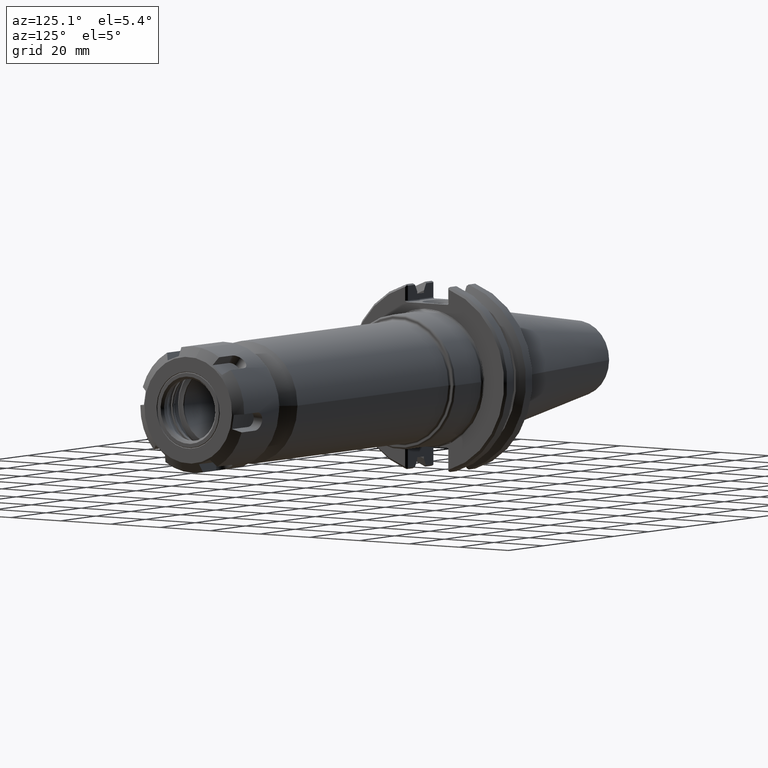
[diagram: clean part render]
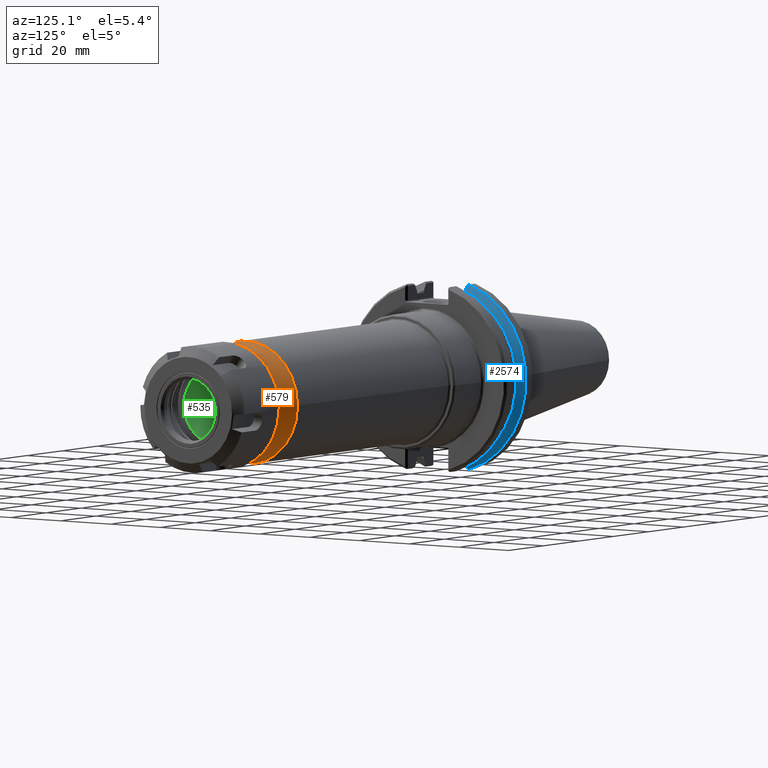
[diagram: same view with three faces highlighted in distinct colors, each labeled with its STEP entity id]
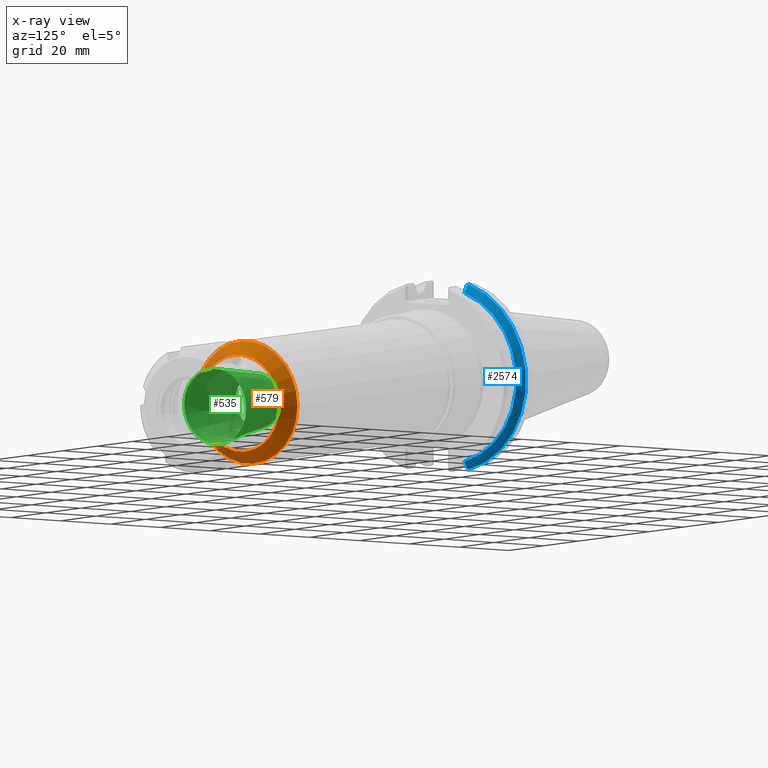
[diagram: x-ray of the same camera — body ghosted, the three highlighted faces saturated]
A machine part, auxiliary view with three faces highlighted in distinct colors.
The next image is the same camera in x-ray (body ghosted, the three faces saturated) — at least one of them is partly hidden behind the body in this view.
Their STEP definitions:

[orange] entity #579 — the highlighted conical surface has half-angle 45 deg.
#152=CARTESIAN_POINT('',(4.965000000000001,0.62992125984252,0.0));
#153=VERTEX_POINT('',#152);
#154=CARTESIAN_POINT('',(4.965000000000001,0.0,0.0));
#155=DIRECTION('',(1.0,0.0,0.0));
#156=DIRECTION('',(0.0,1.0,0.0));
#157=AXIS2_PLACEMENT_3D('',#154,#155,#156);
#158=CIRCLE('',#157,0.62992125984252);
#159=EDGE_CURVE('',#153,#153,#158,.T.);
#433=CARTESIAN_POINT('',(4.797421259842521,0.7975,0.0));
#434=VERTEX_POINT('',#433);
#435=CARTESIAN_POINT('',(4.797421259842521,0.0,0.0));
#436=DIRECTION('',(1.0,0.0,0.0));
#437=DIRECTION('',(0.0,1.0,0.0));
#438=AXIS2_PLACEMENT_3D('',#435,#436,#437);
#439=CIRCLE('',#438,0.7975);
#440=EDGE_CURVE('',#434,#434,#439,.T.);
#568=CARTESIAN_POINT('',(4.881210629921261,0.0,0.0));
#569=DIRECTION('',(-1.0,0.0,0.0));
#570=DIRECTION('',(0.0,1.0,0.0));
#571=AXIS2_PLACEMENT_3D('',#568,#569,#570);
#572=CONICAL_SURFACE('',#571,0.71371062992126,45.000000000000071);
#573=ORIENTED_EDGE('',*,*,#159,.F.);
#574=EDGE_LOOP('',(#573));
#575=FACE_OUTER_BOUND('',#574,.T.);
#576=ORIENTED_EDGE('',*,*,#440,.T.);
#577=EDGE_LOOP('',(#576));
#578=FACE_BOUND('',#577,.T.);
#579=ADVANCED_FACE('',(#575,#578),#572,.T.);

[blue] entity #2574 — the highlighted conical surface has half-angle 60 deg.
#1038=CARTESIAN_POINT('',(0.362849999999924,0.320000000000281,1.094499578944634));
#1039=VERTEX_POINT('',#1038);
#1046=CARTESIAN_POINT('',(0.313469259546232,0.320000000000281,1.18334597694527));
#1047=VERTEX_POINT('',#1046);
#1048=CARTESIAN_POINT('',(0.313469259546232,0.320000000000281,1.18334597694527));
#1049=CARTESIAN_POINT('',(0.339122667172359,0.320000000000281,1.137317012232501));
#1050=CARTESIAN_POINT('',(0.362850000000161,0.320000000000281,1.094499578944206));
#1058=(BOUNDED_CURVE()B_SPLINE_CURVE(2,(#1048,#1049,#1050),.UNSPECIFIED.,.F.,.U.)B_SPLINE_CURVE_WITH_KNOTS((3,3),(0.070089065332967,0.33089215538051),.UNSPECIFIED.)CURVE()GEOMETRIC_REPRESENTATION_ITEM()RATIONAL_B_SPLINE_CURVE((1.000379364126962,1.000895493562713,1.0))REPRESENTATION_ITEM(''));
#1059=EDGE_CURVE('',#1047,#1039,#1058,.T.);
#1667=CARTESIAN_POINT('',(0.31346925954624,0.320000000000269,-1.183345976945258));
#1668=VERTEX_POINT('',#1667);
#1675=CARTESIAN_POINT('',(0.362849999999924,0.320000000000277,-1.094499578944635));
#1676=VERTEX_POINT('',#1675);
#1677=CARTESIAN_POINT('',(0.362850000000161,0.320000000000277,-1.094499578944207));
#1678=CARTESIAN_POINT('',(0.339122667172277,0.320000000000274,-1.137317012232651));
#1679=CARTESIAN_POINT('',(0.31346925954624,0.320000000000269,-1.183345976945258));
#1687=(BOUNDED_CURVE()B_SPLINE_CURVE(2,(#1677,#1678,#1679),.UNSPECIFIED.,.F.,.U.)B_SPLINE_CURVE_WITH_KNOTS((3,3),(0.0,0.260803090047805),.UNSPECIFIED.)CURVE()GEOMETRIC_REPRESENTATION_ITEM()RATIONAL_B_SPLINE_CURVE((1.0,1.000895493570452,1.000379364130239))REPRESENTATION_ITEM(''));
#1688=EDGE_CURVE('',#1676,#1668,#1687,.T.);
#1784=CARTESIAN_POINT('',(0.299526127773361,0.344098106798456,-1.201705659842592));
#1785=VERTEX_POINT('',#1784);
#1792=CARTESIAN_POINT('',(0.29952612777315,0.344098106798779,-1.201705659842855));
#1793=CARTESIAN_POINT('',(0.306604705437787,0.331931523166759,-1.192436275351423));
#1794=CARTESIAN_POINT('',(0.31346925954624,0.320000000000269,-1.183345976945258));
#1802=(BOUNDED_CURVE()B_SPLINE_CURVE(2,(#1792,#1793,#1794),.UNSPECIFIED.,.F.,.U.)B_SPLINE_CURVE_WITH_KNOTS((3,3),(0.0,0.08135752260704),.UNSPECIFIED.)CURVE()GEOMETRIC_REPRESENTATION_ITEM()RATIONAL_B_SPLINE_CURVE((1.0,1.000360586802875,1.00057146939296))REPRESENTATION_ITEM(''));
#1803=EDGE_CURVE('',#1785,#1668,#1802,.T.);
#1825=CARTESIAN_POINT('',(0.299526127773361,0.344098106798413,1.201705659842604));
#1826=VERTEX_POINT('',#1825);
#1833=CARTESIAN_POINT('',(0.299526127773361,0.0,0.0));
#1834=DIRECTION('',(-1.0,-1.624514E-013,0.0));
#1835=DIRECTION('',(-1.624514E-013,1.0,0.0));
#1836=AXIS2_PLACEMENT_3D('',#1833,#1834,#1835);
#1837=CIRCLE('',#1836,1.25);
#1838=EDGE_CURVE('',#1826,#1785,#1837,.T.);
#2268=CARTESIAN_POINT('',(0.313469259546232,0.320000000000281,1.18334597694527));
#2269=CARTESIAN_POINT('',(0.306604705437785,0.331931523166747,1.19243627535143));
#2270=CARTESIAN_POINT('',(0.299526127773154,0.344098106798745,1.201705659842858));
#2278=(BOUNDED_CURVE()B_SPLINE_CURVE(2,(#2268,#2269,#2270),.UNSPECIFIED.,.F.,.U.)B_SPLINE_CURVE_WITH_KNOTS((3,3),(0.310567973943817,0.391925496550739),.UNSPECIFIED.)CURVE()GEOMETRIC_REPRESENTATION_ITEM()RATIONAL_B_SPLINE_CURVE((1.000571469393039,1.000360586802924,1.0))REPRESENTATION_ITEM(''));
#2279=EDGE_CURVE('',#1047,#1826,#2278,.T.);
#2549=CARTESIAN_POINT('',(0.362849999999976,2.772395E-013,0.0));
#2550=DIRECTION('',(-1.0,-1.624821E-013,0.0));
#2551=DIRECTION('',(-1.624821E-013,1.0,0.0));
#2552=AXIS2_PLACEMENT_3D('',#2549,#2550,#2551);
#2553=CIRCLE('',#2552,1.140319835971463);
#2554=EDGE_CURVE('',#1039,#1676,#2553,.T.);
#2561=CARTESIAN_POINT('',(0.278793526957718,2.635844E-013,0.0));
#2562=DIRECTION('',(-1.0,-1.624514E-013,0.0));
#2563=DIRECTION('',(-1.624821E-013,1.0,0.0));
#2564=AXIS2_PLACEMENT_3D('',#2561,#2562,#2563);
#2565=CONICAL_SURFACE('',#2564,1.285909917985751,60.000000000009265);
#2566=ORIENTED_EDGE('',*,*,#1803,.F.);
#2567=ORIENTED_EDGE('',*,*,#1838,.F.);
#2568=ORIENTED_EDGE('',*,*,#2279,.F.);
#2569=ORIENTED_EDGE('',*,*,#1059,.T.);
#2570=ORIENTED_EDGE('',*,*,#2554,.T.);
#2571=ORIENTED_EDGE('',*,*,#1688,.T.);
#2572=EDGE_LOOP('',(#2566,#2567,#2568,#2569,#2570,#2571));
#2573=FACE_OUTER_BOUND('',#2572,.T.);
#2574=ADVANCED_FACE('',(#2573),#2565,.T.);

[green] entity #535 — the highlighted conical surface has half-angle 8 deg.
#501=CARTESIAN_POINT('',(5.514926957495401,0.490684326198411,0.0));
#502=VERTEX_POINT('',#501);
#503=CARTESIAN_POINT('',(5.514926957495401,0.0,0.0));
#504=DIRECTION('',(-1.0,0.0,0.0));
#505=DIRECTION('',(0.0,1.0,0.0));
#506=AXIS2_PLACEMENT_3D('',#503,#504,#505);
#507=CIRCLE('',#506,0.490684326198411);
#508=EDGE_CURVE('',#502,#502,#507,.T.);
#516=CARTESIAN_POINT('',(5.032204884278265,0.0,0.0));
#517=DIRECTION('',(1.0,0.0,0.0));
#518=DIRECTION('',(0.0,1.0,0.0));
#519=AXIS2_PLACEMENT_3D('',#516,#517,#518);
#520=CONICAL_SURFACE('',#519,0.422842163099206,8.000000000000014);
#521=CARTESIAN_POINT('',(4.54948281106113,0.355,0.0));
#522=VERTEX_POINT('',#521);
#523=CARTESIAN_POINT('',(4.54948281106113,0.0,0.0));
#524=DIRECTION('',(-1.0,0.0,0.0));
#525=DIRECTION('',(0.0,1.0,0.0));
#526=AXIS2_PLACEMENT_3D('',#523,#524,#525);
#527=CIRCLE('',#526,0.355);
#528=EDGE_CURVE('',#522,#522,#527,.T.);
#529=ORIENTED_EDGE('',*,*,#528,.T.);
#530=EDGE_LOOP('',(#529));
#531=FACE_OUTER_BOUND('',#530,.T.);
#532=ORIENTED_EDGE('',*,*,#508,.F.);
#533=EDGE_LOOP('',(#532));
#534=FACE_BOUND('',#533,.T.);
#535=ADVANCED_FACE('',(#531,#534),#520,.F.);